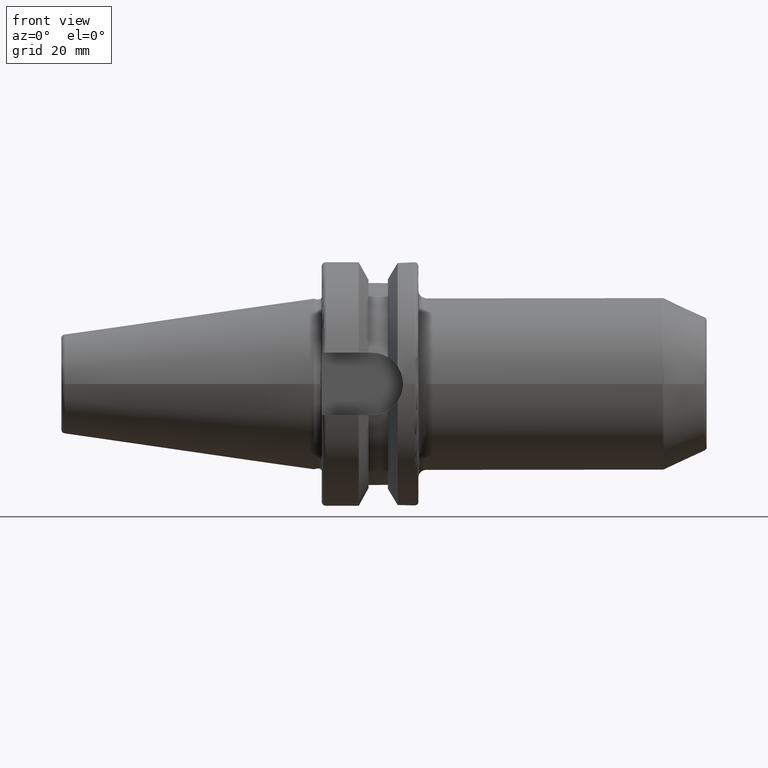
[diagram: clean part render]
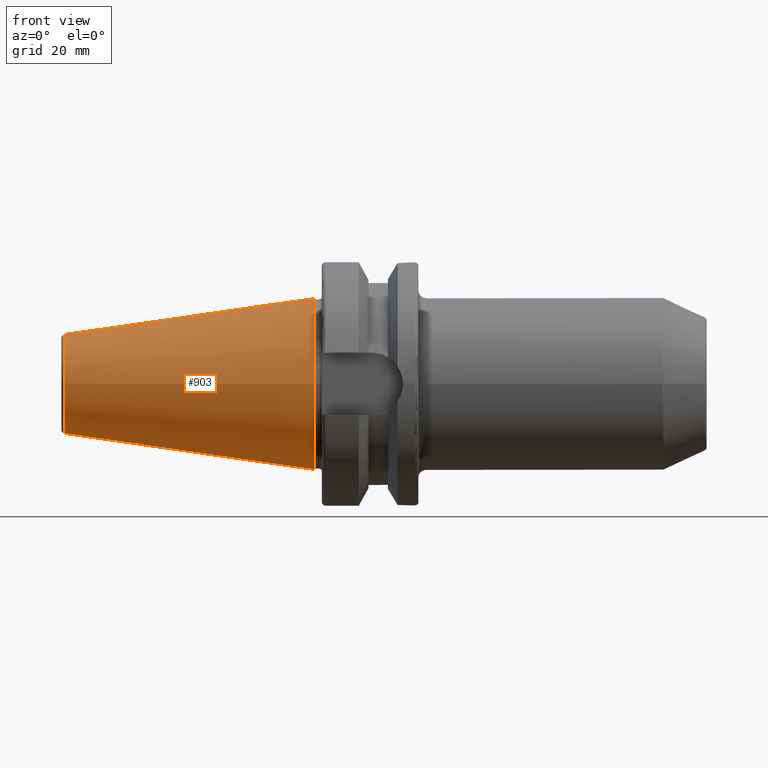
[diagram: same view with one face highlighted and labeled with its STEP entity id]
A machine part, front view. The second image highlights one B-rep face of the part: STEP entity #903.
In plain terms, the highlighted conical surface has half-angle 8.297 deg.
Its self-contained STEP definition (entity closure, byte-faithful):
#25=CONICAL_SURFACE('',#1025,17.5186442890469,0.144812498238939);
#88=LINE('',#1754,#134);
#134=VECTOR('',#1271,17.5186442890469);
#220=FACE_OUTER_BOUND('',#281,.T.);
#281=EDGE_LOOP('',(#776,#777,#778,#779,#780));
#343=CIRCLE('',#1021,12.8122885780937);
#344=CIRCLE('',#1022,12.8122885780937);
#347=CIRCLE('',#1026,22.225);
#441=VERTEX_POINT('',#1744);
#442=VERTEX_POINT('',#1745);
#444=VERTEX_POINT('',#1752);
#559=EDGE_CURVE('',#441,#442,#343,.T.);
#560=EDGE_CURVE('',#442,#441,#344,.T.);
#563=EDGE_CURVE('',#444,#444,#347,.T.);
#564=EDGE_CURVE('',#444,#441,#88,.T.);
#776=ORIENTED_EDGE('',*,*,#563,.F.);
#777=ORIENTED_EDGE('',*,*,#564,.T.);
#778=ORIENTED_EDGE('',*,*,#559,.T.);
#779=ORIENTED_EDGE('',*,*,#560,.T.);
#780=ORIENTED_EDGE('',*,*,#564,.F.);
#903=ADVANCED_FACE('',(#220),#25,.T.);
#1021=AXIS2_PLACEMENT_3D('',#1746,#1259,#1260);
#1022=AXIS2_PLACEMENT_3D('',#1747,#1261,#1262);
#1025=AXIS2_PLACEMENT_3D('',#1751,#1267,#1268);
#1026=AXIS2_PLACEMENT_3D('',#1753,#1269,#1270);
#1259=DIRECTION('center_axis',(1.,0.,0.));
#1260=DIRECTION('ref_axis',(0.,0.,-1.));
#1261=DIRECTION('center_axis',(1.,0.,0.));
#1262=DIRECTION('ref_axis',(0.,0.,-1.));
#1267=DIRECTION('center_axis',(1.,0.,0.));
#1268=DIRECTION('ref_axis',(0.,1.,0.));
#1269=DIRECTION('center_axis',(1.,0.,0.));
#1270=DIRECTION('ref_axis',(0.,0.,-1.));
#1271=DIRECTION('',(-0.989532981063282,0.144306893071729,1.76724974695192E-17));
#1744=CARTESIAN_POINT('',(-64.5443068930717,-12.8122885780937,-1.56905281969147E-15));
#1745=CARTESIAN_POINT('',(-64.5443068930717,-1.56905281969147E-15,12.8122885780937));
#1746=CARTESIAN_POINT('Origin',(-64.5443068930717,0.,0.));
#1747=CARTESIAN_POINT('Origin',(-64.5443068930717,0.,0.));
#1751=CARTESIAN_POINT('Origin',(-32.2721534465359,0.,0.));
#1752=CARTESIAN_POINT('',(4.44089209850063E-15,-22.225,-2.72177751110499E-15));
#1753=CARTESIAN_POINT('Origin',(0.,0.,0.));
#1754=CARTESIAN_POINT('',(-32.2721534465359,-17.5186442890469,-2.14541516539823E-15));